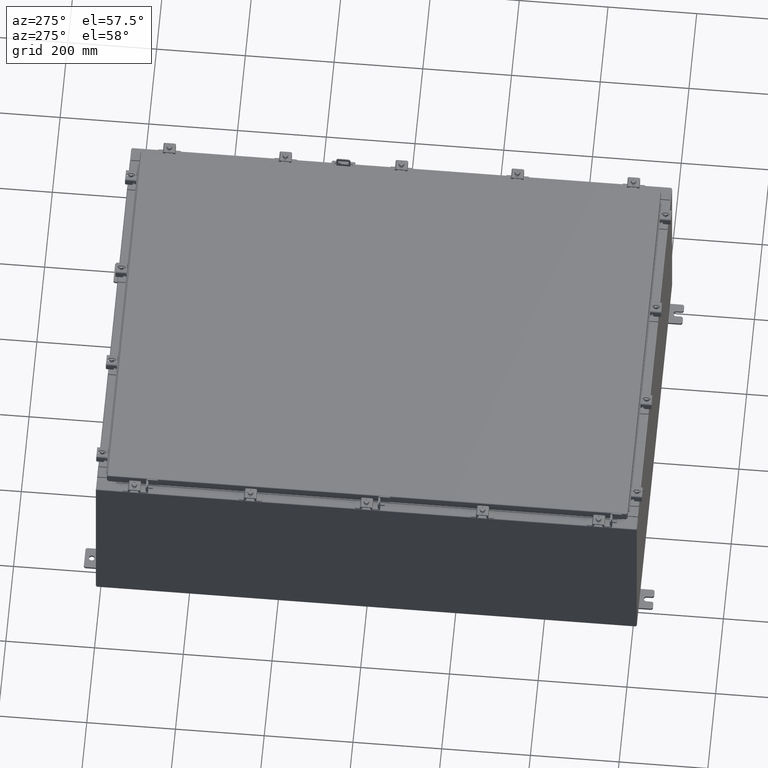
[diagram: clean part render]
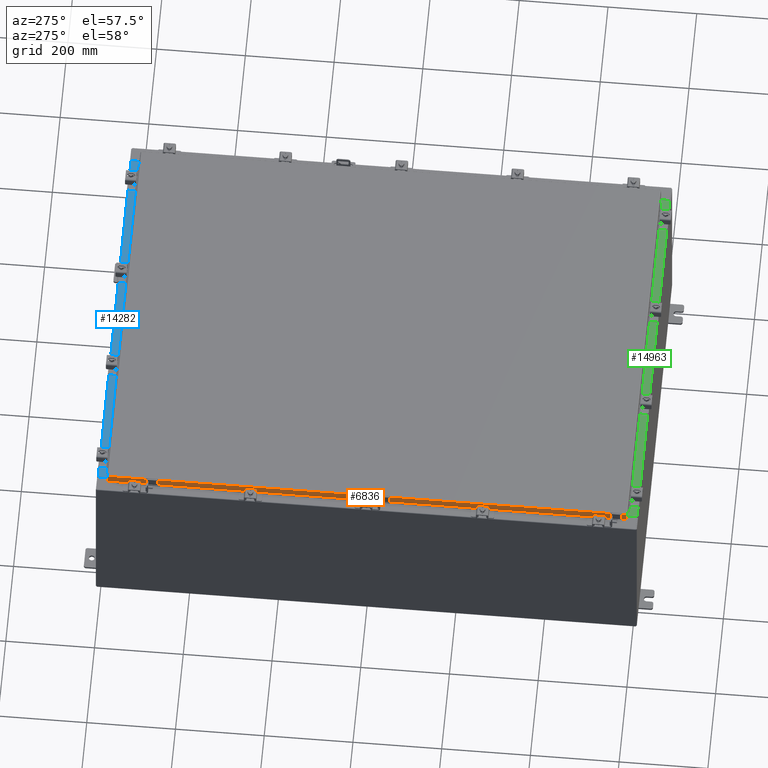
[diagram: same view with three faces highlighted in distinct colors, each labeled with its STEP entity id]
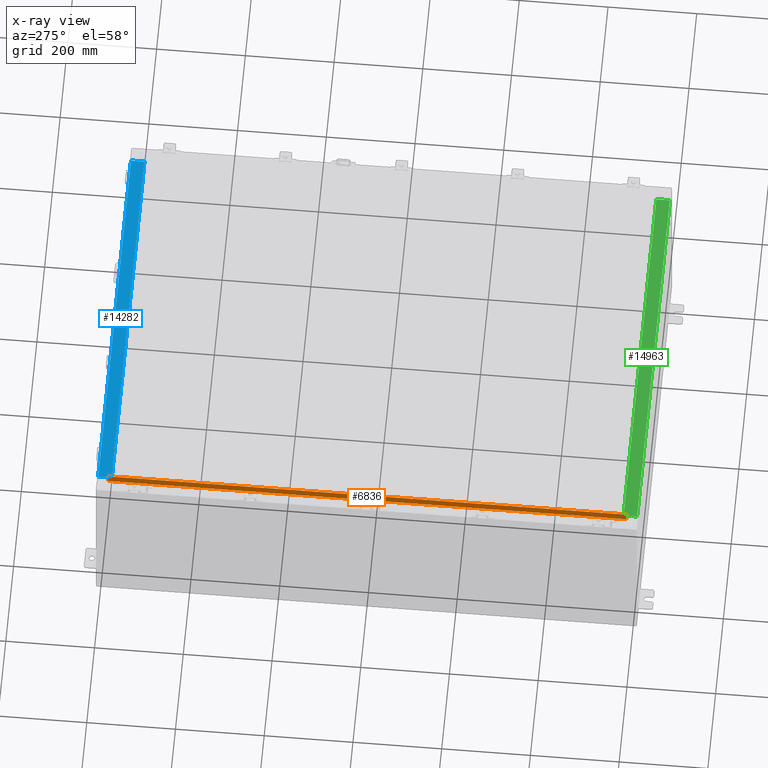
[diagram: x-ray of the same camera — body ghosted, the three highlighted faces saturated]
A machine part, auxiliary view with three faces highlighted in distinct colors.
The next image is the same camera in x-ray (body ghosted, the three faces saturated) — at least one of them is partly hidden behind the body in this view.
Their STEP definitions:

[orange] entity #6836 — the highlighted planar face has unit normal (1, 0, -0).
#1332 = AXIS2_PLACEMENT_3D ( 'NONE', #20952, #22602, #22853 ) ;
#1471 = VECTOR ( 'NONE', #9849, 39.37007874015748100 ) ;
#2314 = ORIENTED_EDGE ( 'NONE', *, *, #21898, .F. ) ;
#2628 = VERTEX_POINT ( 'NONE', #17227 ) ;
#3524 = CARTESIAN_POINT ( 'NONE',  ( -17.07800000000000300, -23.00515786437625800, -0.8499999999999999800 ) ) ;
#3744 = DIRECTION ( 'NONE',  ( -2.818880942772360100E-015, 6.982962677686265900E-015, -1.000000000000000000 ) ) ;
#4472 = CARTESIAN_POINT ( 'NONE',  ( -17.07799999999998900, 22.25515786437623700, -0.8500000000000020900 ) ) ;
#4923 = EDGE_CURVE ( 'NONE', #25466, #14444, #22778, .T. ) ;
#5113 = EDGE_LOOP ( 'NONE', ( #18216, #8701, #7118, #2314, #18365, #9904 ) ) ;
#5973 = LINE ( 'NONE', #23392, #10923 ) ;
#6559 = CARTESIAN_POINT ( 'NONE',  ( -17.07799999999999900, -23.00515786437626200, -0.07470000000000015500 ) ) ;
#6836 = ADVANCED_FACE ( 'NONE', ( #9101 ), #18605, .F. ) ;
#7118 = ORIENTED_EDGE ( 'NONE', *, *, #9971, .F. ) ;
#8231 = VECTOR ( 'NONE', #20655, 39.37007874015748100 ) ;
#8701 = ORIENTED_EDGE ( 'NONE', *, *, #9091, .T. ) ;
#8781 = CARTESIAN_POINT ( 'NONE',  ( -17.07799999999999900, -23.00515786437626200, -0.08770000000000026400 ) ) ;
#9091 = EDGE_CURVE ( 'NONE', #2628, #20385, #18964, .T. ) ;
#9101 = FACE_OUTER_BOUND ( 'NONE', #5113, .T. ) ;
#9849 = DIRECTION ( 'NONE',  ( -2.818880942772360100E-015, 6.982962677686265900E-015, -1.000000000000000000 ) ) ;
#9904 = ORIENTED_EDGE ( 'NONE', *, *, #4923, .F. ) ;
#9971 = EDGE_CURVE ( 'NONE', #23820, #20385, #5973, .T. ) ;
#10037 = EDGE_CURVE ( 'NONE', #2628, #25466, #20248, .T. ) ;
#10923 = VECTOR ( 'NONE', #19169, 39.37007874015748100 ) ;
#11273 = DIRECTION ( 'NONE',  ( 3.417889107165661600E-031, -1.000000000000000000, -9.316371385484559400E-046 ) ) ;
#11515 = VECTOR ( 'NONE', #3744, 39.37007874015748100 ) ;
#14444 = VERTEX_POINT ( 'NONE', #3524 ) ;
#15897 = VECTOR ( 'NONE', #18424, 39.37007874015748100 ) ;
#17227 = CARTESIAN_POINT ( 'NONE',  ( -17.07799999999999900, 23.00515786437626200, -0.08770000000000026400 ) ) ;
#17362 = VERTEX_POINT ( 'NONE', #17718 ) ;
#17718 = CARTESIAN_POINT ( 'NONE',  ( -17.07799999999998900, -22.25515786437626200, -0.8500000000000020900 ) ) ;
#18216 = ORIENTED_EDGE ( 'NONE', *, *, #10037, .F. ) ;
#18365 = ORIENTED_EDGE ( 'NONE', *, *, #20495, .F. ) ;
#18424 = DIRECTION ( 'NONE',  ( -4.379057701015054300E-047, 1.000000000000000000, 1.212498568245375500E-016 ) ) ;
#18605 = PLANE ( 'NONE',  #1332 ) ;
#18964 = LINE ( 'NONE', #22551, #1471 ) ;
#19169 = DIRECTION ( 'NONE',  ( -4.379057701015054300E-047, 1.000000000000000000, 1.212498568245375500E-016 ) ) ;
#20248 = LINE ( 'NONE', #26076, #25821 ) ;
#20385 = VERTEX_POINT ( 'NONE', #26517 ) ;
#20495 = EDGE_CURVE ( 'NONE', #14444, #17362, #27110, .T. ) ;
#20536 = CARTESIAN_POINT ( 'NONE',  ( -17.07800000000000300, -23.09399999999999400, -0.8499999999999999800 ) ) ;
#20655 = DIRECTION ( 'NONE',  ( -0.0000000000000000000, 1.000000000000000000, -0.0000000000000000000 ) ) ;
#20952 = CARTESIAN_POINT ( 'NONE',  ( -17.07799999999999900, 0.0000000000000000000, 4.808052468849102900E-014 ) ) ;
#21898 = EDGE_CURVE ( 'NONE', #17362, #23820, #25122, .T. ) ;
#22551 = CARTESIAN_POINT ( 'NONE',  ( -17.07799999999999900, 23.00515786437626200, 2.076204475184840000E-013 ) ) ;
#22602 = DIRECTION ( 'NONE',  ( 1.000000000000000000, 3.417889107165661600E-031, -2.818880942772360100E-015 ) ) ;
#22778 = LINE ( 'NONE', #6559, #11515 ) ;
#22853 = DIRECTION ( 'NONE',  ( -2.818880942772360100E-015, 0.0000000000000000000, -1.000000000000000000 ) ) ;
#23392 = CARTESIAN_POINT ( 'NONE',  ( -17.07800000000000300, -23.09399999999999400, -0.8499999999999999800 ) ) ;
#23820 = VERTEX_POINT ( 'NONE', #4472 ) ;
#24879 = CARTESIAN_POINT ( 'NONE',  ( -17.07799999999998900, -22.25515786437625500, -0.8500000000000020900 ) ) ;
#25122 = LINE ( 'NONE', #24879, #8231 ) ;
#25466 = VERTEX_POINT ( 'NONE', #8781 ) ;
#25821 = VECTOR ( 'NONE', #11273, 39.37007874015748100 ) ;
#26076 = CARTESIAN_POINT ( 'NONE',  ( -17.07799999999999900, -23.09399999999999400, -0.08770000000000026400 ) ) ;
#26517 = CARTESIAN_POINT ( 'NONE',  ( -17.07800000000000300, 23.00515786437626200, -0.8499999999999934300 ) ) ;
#27110 = LINE ( 'NONE', #20536, #15897 ) ;

[blue] entity #14282 — the highlighted planar face has unit normal (0, 0, 1).
#418 = LINE ( 'NONE', #20018, #16533 ) ;
#1407 = AXIS2_PLACEMENT_3D ( 'NONE', #19999, #7290, #22113 ) ;
#2402 = CARTESIAN_POINT ( 'NONE',  ( 16.63720000000000000, -1.300300000000001300, 8.000000000000003600 ) ) ;
#3506 = FACE_OUTER_BOUND ( 'NONE', #17204, .T. ) ;
#3784 = EDGE_CURVE ( 'NONE', #8649, #24756, #418, .T. ) ;
#3828 = ORIENTED_EDGE ( 'NONE', *, *, #14780, .F. ) ;
#4767 = LINE ( 'NONE', #2402, #20370 ) ;
#4773 = VECTOR ( 'NONE', #18600, 39.37007874015748100 ) ;
#6100 = LINE ( 'NONE', #24754, #4773 ) ;
#6625 = EDGE_CURVE ( 'NONE', #21079, #17152, #25663, .T. ) ;
#6939 = CARTESIAN_POINT ( 'NONE',  ( -16.63720000000000000, -1.287299999999999200, 8.000000000000007100 ) ) ;
#7236 = EDGE_CURVE ( 'NONE', #24756, #17152, #6100, .T. ) ;
#7290 = DIRECTION ( 'NONE',  ( 6.568047492761433500E-017, 3.566381192773190000E-015, 1.000000000000000000 ) ) ;
#7552 = ORIENTED_EDGE ( 'NONE', *, *, #7236, .F. ) ;
#8649 = VERTEX_POINT ( 'NONE', #20706 ) ;
#9333 = PLANE ( 'NONE',  #1407 ) ;
#11786 = CARTESIAN_POINT ( 'NONE',  ( 16.63720000000000400, -0.08770000000000026400, 7.999999999999999100 ) ) ;
#13020 = ORIENTED_EDGE ( 'NONE', *, *, #3784, .F. ) ;
#14282 = ADVANCED_FACE ( 'NONE', ( #3506 ), #9333, .T. ) ;
#14780 = EDGE_CURVE ( 'NONE', #21079, #8649, #4767, .T. ) ;
#16533 = VECTOR ( 'NONE', #26217, 39.37007874015748100 ) ;
#17152 = VERTEX_POINT ( 'NONE', #19118 ) ;
#17204 = EDGE_LOOP ( 'NONE', ( #7552, #13020, #3828, #27066 ) ) ;
#18600 = DIRECTION ( 'NONE',  ( -0.0000000000000000000, 1.000000000000000000, -3.566381192773190000E-015 ) ) ;
#19118 = CARTESIAN_POINT ( 'NONE',  ( -16.63720000000000000, -0.08770000000000026400, 8.000000000000003600 ) ) ;
#19316 = DIRECTION ( 'NONE',  ( -0.0000000000000000000, -1.000000000000000000, 3.566381192773190000E-015 ) ) ;
#19999 = CARTESIAN_POINT ( 'NONE',  ( 5.292955487724510400E-016, 3.059669752903974500E-014, 8.000000000000001800 ) ) ;
#20018 = CARTESIAN_POINT ( 'NONE',  ( 16.63720000000000400, -1.287299999999999200, 8.000000000000003600 ) ) ;
#20370 = VECTOR ( 'NONE', #19316, 39.37007874015748100 ) ;
#20706 = CARTESIAN_POINT ( 'NONE',  ( 16.63720000000000000, -1.287299999999999200, 8.000000000000003600 ) ) ;
#21079 = VERTEX_POINT ( 'NONE', #11786 ) ;
#21879 = CARTESIAN_POINT ( 'NONE',  ( 5.292955487724510400E-016, -0.08770000000000026400, 8.000000000000001800 ) ) ;
#22113 = DIRECTION ( 'NONE',  ( 0.0000000000000000000, -1.000000000000000000, 3.566381192773190000E-015 ) ) ;
#24268 = DIRECTION ( 'NONE',  ( -1.000000000000000000, -6.568047492761434800E-017, 6.568047492761457000E-017 ) ) ;
#24754 = CARTESIAN_POINT ( 'NONE',  ( -16.63720000000000000, -0.07469999999999797600, 8.000000000000003600 ) ) ;
#24756 = VERTEX_POINT ( 'NONE', #6939 ) ;
#24995 = VECTOR ( 'NONE', #24268, 39.37007874015748100 ) ;
#25663 = LINE ( 'NONE', #21879, #24995 ) ;
#26217 = DIRECTION ( 'NONE',  ( -1.000000000000000000, 0.0000000000000000000, 0.0000000000000000000 ) ) ;
#27066 = ORIENTED_EDGE ( 'NONE', *, *, #6625, .T. ) ;

[green] entity #14963 — the highlighted planar face has unit normal (-0, -0, 1).
#223 = FACE_OUTER_BOUND ( 'NONE', #25672, .T. ) ;
#242 = CARTESIAN_POINT ( 'NONE',  ( 16.63720000000001400, -1.300300000000001300, 8.000000000000017800 ) ) ;
#1347 = ORIENTED_EDGE ( 'NONE', *, *, #25520, .F. ) ;
#2891 = CARTESIAN_POINT ( 'NONE',  ( -16.63719999999998600, -0.08770000000000026400, 7.999999999999983100 ) ) ;
#4868 = DIRECTION ( 'NONE',  ( -1.000000000000000000, -3.882672471854376700E-016, -9.335202472350261400E-016 ) ) ;
#5039 = DIRECTION ( 'NONE',  ( 1.064881197090255600E-015, 3.767692204910442100E-015, 1.000000000000000000 ) ) ;
#6128 = VERTEX_POINT ( 'NONE', #2891 ) ;
#6349 = VERTEX_POINT ( 'NONE', #21317 ) ;
#6890 = VERTEX_POINT ( 'NONE', #23731 ) ;
#7314 = ORIENTED_EDGE ( 'NONE', *, *, #20775, .F. ) ;
#8455 = VERTEX_POINT ( 'NONE', #17759 ) ;
#8738 = VECTOR ( 'NONE', #11099, 39.37007874015748100 ) ;
#10316 = DIRECTION ( 'NONE',  ( 3.225867722578196700E-016, 1.000000000000000000, -3.767692204910442100E-015 ) ) ;
#10564 = LINE ( 'NONE', #242, #17546 ) ;
#11099 = DIRECTION ( 'NONE',  ( -1.000000000000000000, -3.225867722578232700E-016, -9.992007221626408900E-016 ) ) ;
#11321 = CARTESIAN_POINT ( 'NONE',  ( 8.605321180042428600E-015, 2.622574073917692700E-014, 8.000000000000001800 ) ) ;
#11600 = AXIS2_PLACEMENT_3D ( 'NONE', #11321, #5039, #19872 ) ;
#12793 = DIRECTION ( 'NONE',  ( -3.225867722578196700E-016, -1.000000000000000000, 3.767692204910442100E-015 ) ) ;
#12953 = EDGE_CURVE ( 'NONE', #8455, #6128, #25038, .T. ) ;
#13263 = CARTESIAN_POINT ( 'NONE',  ( 8.519950930240421700E-015, -0.08770000000000026400, 8.000000000000001800 ) ) ;
#14909 = LINE ( 'NONE', #13263, #20595 ) ;
#14963 = ADVANCED_FACE ( 'NONE', ( #223 ), #17735, .T. ) ;
#15769 = ORIENTED_EDGE ( 'NONE', *, *, #16698, .T. ) ;
#16698 = EDGE_CURVE ( 'NONE', #6890, #6128, #14909, .T. ) ;
#17546 = VECTOR ( 'NONE', #12793, 39.37007874015748100 ) ;
#17735 = PLANE ( 'NONE',  #11600 ) ;
#17759 = CARTESIAN_POINT ( 'NONE',  ( -16.63719999999998600, -1.287299999999999200, 7.999999999999987600 ) ) ;
#19446 = VECTOR ( 'NONE', #10316, 39.37007874015748100 ) ;
#19872 = DIRECTION ( 'NONE',  ( -3.225867722578196200E-016, -1.000000000000000000, 3.767692204910442100E-015 ) ) ;
#20595 = VECTOR ( 'NONE', #4868, 39.37007874015748100 ) ;
#20775 = EDGE_CURVE ( 'NONE', #6890, #6349, #10564, .T. ) ;
#20815 = CARTESIAN_POINT ( 'NONE',  ( -16.63719999999998600, -0.07470000000000234800, 7.999999999999983100 ) ) ;
#21317 = CARTESIAN_POINT ( 'NONE',  ( 16.63720000000001400, -1.287299999999999200, 8.000000000000017800 ) ) ;
#23164 = ORIENTED_EDGE ( 'NONE', *, *, #12953, .F. ) ;
#23731 = CARTESIAN_POINT ( 'NONE',  ( 16.63720000000001400, -0.08770000000000026400, 8.000000000000014200 ) ) ;
#23778 = CARTESIAN_POINT ( 'NONE',  ( 16.63720000000001400, -1.287299999999999200, 8.000000000000017800 ) ) ;
#25038 = LINE ( 'NONE', #20815, #19446 ) ;
#25520 = EDGE_CURVE ( 'NONE', #6349, #8455, #26296, .T. ) ;
#25672 = EDGE_LOOP ( 'NONE', ( #23164, #1347, #7314, #15769 ) ) ;
#26296 = LINE ( 'NONE', #23778, #8738 ) ;